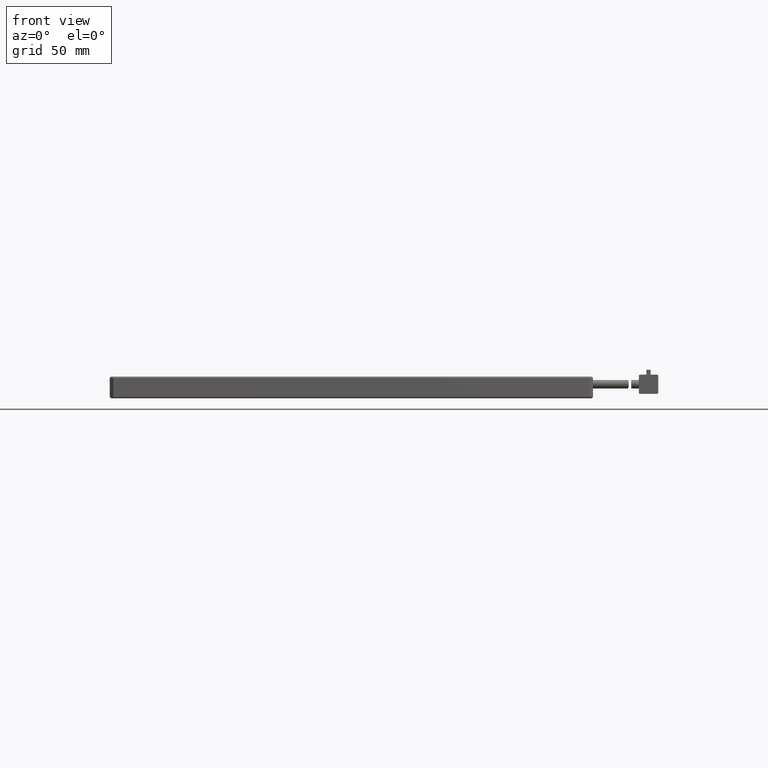
[diagram: clean part render]
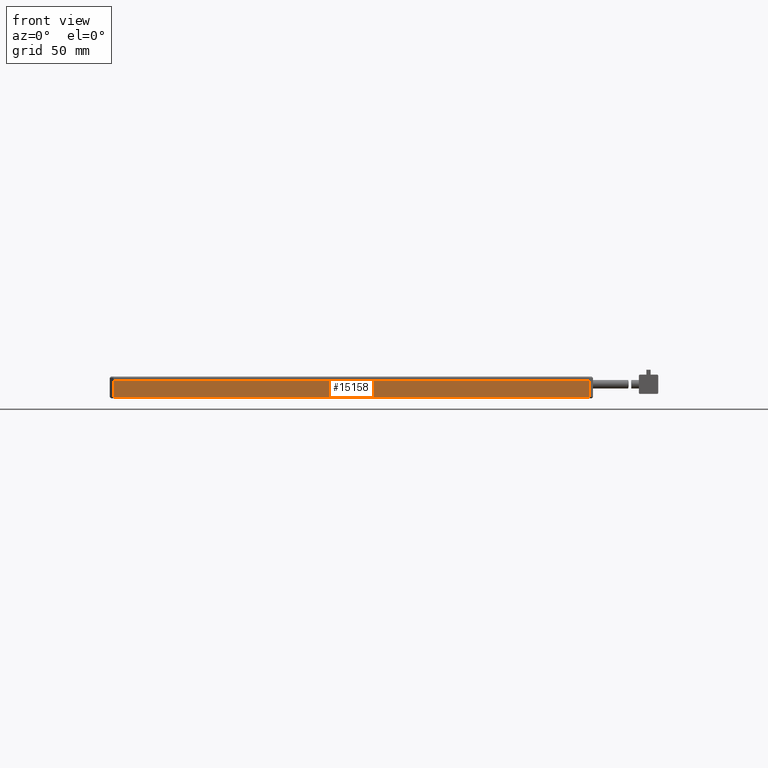
[diagram: same view with one face highlighted and labeled with its STEP entity id]
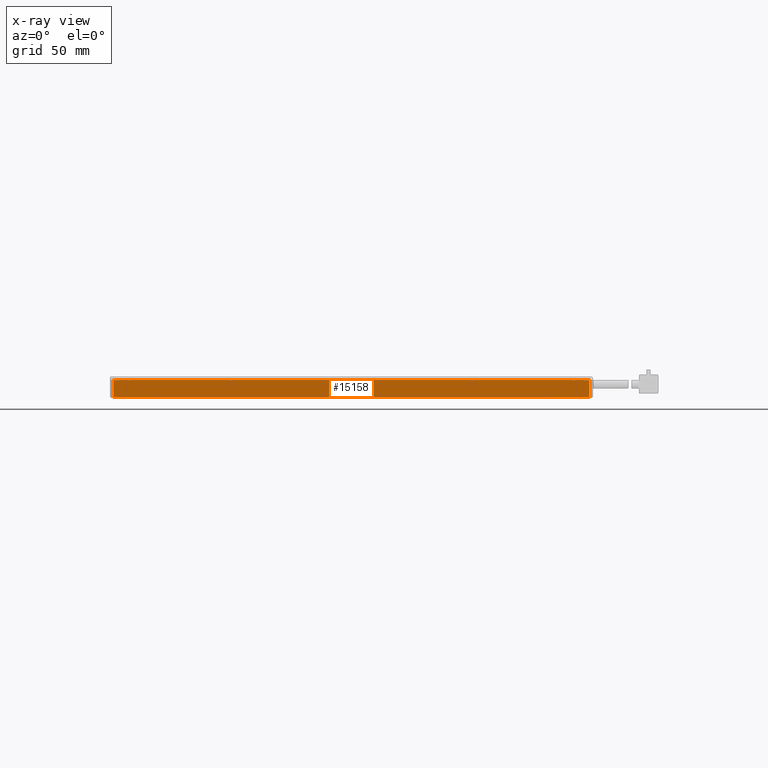
[diagram: x-ray of the same camera — body ghosted, the highlighted face saturated]
A machine part, front view. The second image highlights one B-rep face of the part: STEP entity #15158.
The next image is the same camera in x-ray: the body ghosted, the highlighted face saturated — about 0% of this face is hidden behind the body in this view.
In plain terms, the highlighted planar face has unit normal (0, 1, 0).
Its self-contained STEP definition (entity closure, byte-faithful):
#337 = ORIENTED_EDGE ( 'NONE', *, *, #19825, .F. ) ;
#1794 = CARTESIAN_POINT ( 'NONE',  ( -142.7189553990610300, -85.04917840375588900, -2.500000000000004000 ) ) ;
#1919 = LINE ( 'NONE', #6896, #14206 ) ;
#4414 = VERTEX_POINT ( 'NONE', #22709 ) ;
#6588 = CARTESIAN_POINT ( 'NONE',  ( -142.7189553990610300, -85.04917840375587400, 4.499999999999999100 ) ) ;
#6896 = CARTESIAN_POINT ( 'NONE',  ( -144.2189553990610300, -85.04917840375587400, -2.500000000000000000 ) ) ;
#9030 = DIRECTION ( 'NONE',  ( -1.000000000000000000, 0.0000000000000000000, -0.0000000000000000000 ) ) ;
#9055 = DIRECTION ( 'NONE',  ( 0.0000000000000000000, -0.0000000000000000000, 1.000000000000000000 ) ) ;
#9303 = ORIENTED_EDGE ( 'NONE', *, *, #24987, .T. ) ;
#9388 = DIRECTION ( 'NONE',  ( -1.000000000000000000, -0.0000000000000000000, -0.0000000000000000000 ) ) ;
#12087 = DIRECTION ( 'NONE',  ( 0.0000000000000000000, 1.000000000000000000, 0.0000000000000000000 ) ) ;
#12469 = CARTESIAN_POINT ( 'NONE',  ( 54.28104460093891200, -85.04917840375588900, 4.499999999999999100 ) ) ;
#13853 = VERTEX_POINT ( 'NONE', #12469 ) ;
#14049 = LINE ( 'NONE', #21293, #19829 ) ;
#14206 = VECTOR ( 'NONE', #9388, 1000.000000000000000 ) ;
#15158 = ADVANCED_FACE ( 'NONE', ( #30231 ), #16928, .F. ) ;
#15801 = AXIS2_PLACEMENT_3D ( 'NONE', #26865, #12087, #29405 ) ;
#16928 = PLANE ( 'NONE',  #15801 ) ;
#17919 = EDGE_CURVE ( 'NONE', #13853, #4414, #26636, .T. ) ;
#18049 = DIRECTION ( 'NONE',  ( -0.0000000000000000000, 0.0000000000000000000, -1.000000000000000000 ) ) ;
#18087 = VERTEX_POINT ( 'NONE', #18612 ) ;
#18612 = CARTESIAN_POINT ( 'NONE',  ( -142.7189553990610300, -85.04917840375588900, 4.499999999999999100 ) ) ;
#19385 = LINE ( 'NONE', #6588, #31761 ) ;
#19825 = EDGE_CURVE ( 'NONE', #27805, #18087, #19385, .T. ) ;
#19829 = VECTOR ( 'NONE', #9030, 1000.000000000000000 ) ;
#21293 = CARTESIAN_POINT ( 'NONE',  ( -144.2189553990610300, -85.04917840375590300, 4.499999999999999100 ) ) ;
#22709 = CARTESIAN_POINT ( 'NONE',  ( 54.28104460093896900, -85.04917840375587400, -2.500000000000000000 ) ) ;
#24987 = EDGE_CURVE ( 'NONE', #13853, #18087, #14049, .T. ) ;
#25329 = EDGE_LOOP ( 'NONE', ( #29569, #31742, #9303, #337 ) ) ;
#25853 = VECTOR ( 'NONE', #18049, 1000.000000000000000 ) ;
#26476 = EDGE_CURVE ( 'NONE', #4414, #27805, #1919, .T. ) ;
#26636 = LINE ( 'NONE', #27929, #25853 ) ;
#26865 = CARTESIAN_POINT ( 'NONE',  ( -144.2189553990610300, -85.04917840375587400, 4.499999999999999100 ) ) ;
#27805 = VERTEX_POINT ( 'NONE', #1794 ) ;
#27929 = CARTESIAN_POINT ( 'NONE',  ( 54.28104460093888400, -85.04917840375587400, 4.499999999999999100 ) ) ;
#29405 = DIRECTION ( 'NONE',  ( 0.0000000000000000000, -0.0000000000000000000, 1.000000000000000000 ) ) ;
#29569 = ORIENTED_EDGE ( 'NONE', *, *, #26476, .F. ) ;
#30231 = FACE_OUTER_BOUND ( 'NONE', #25329, .T. ) ;
#31742 = ORIENTED_EDGE ( 'NONE', *, *, #17919, .F. ) ;
#31761 = VECTOR ( 'NONE', #9055, 1000.000000000000000 ) ;